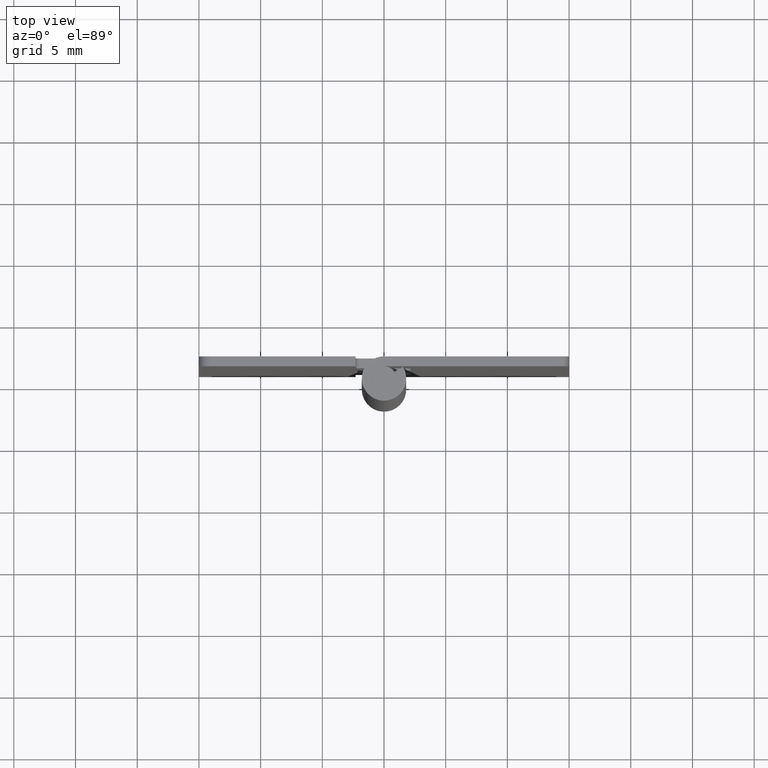
[diagram: clean part render]
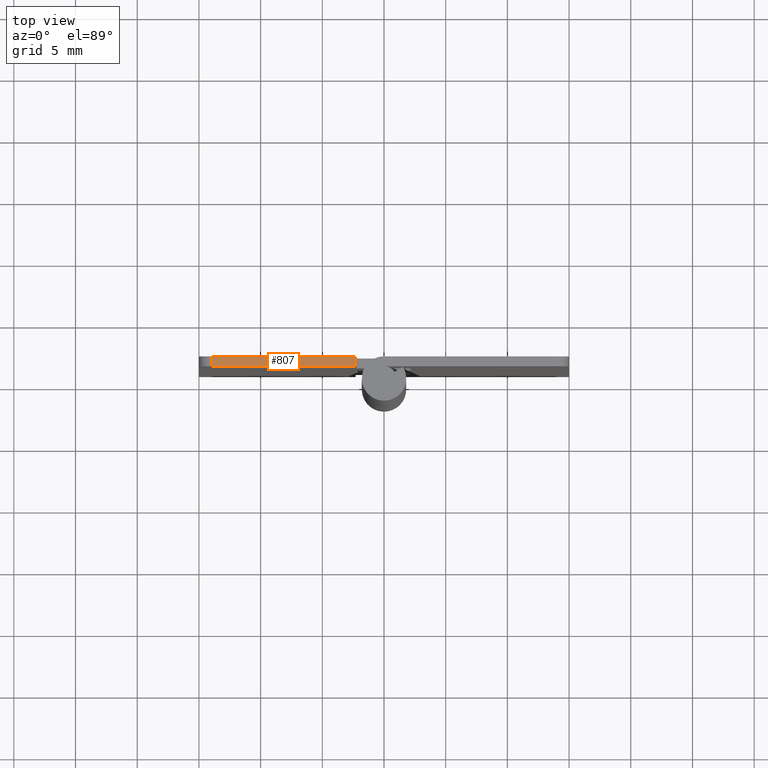
[diagram: same view with one face highlighted and labeled with its STEP entity id]
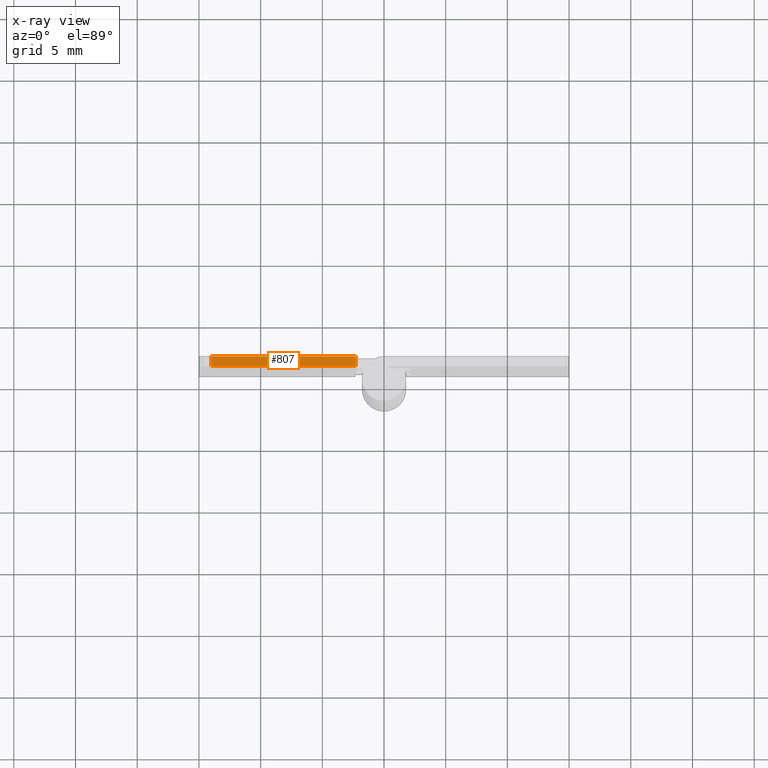
[diagram: x-ray of the same camera — body ghosted, the highlighted face saturated]
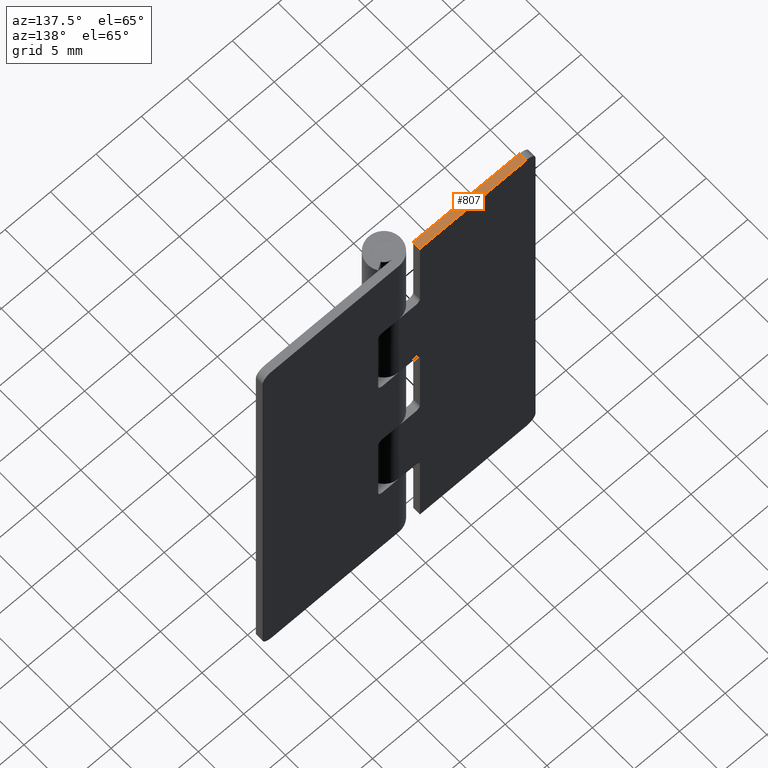
[diagram: same view with one face highlighted and labeled with its STEP entity id]
A machine part, top view. The second image highlights one B-rep face of the part: STEP entity #807.
The next image is the same camera in x-ray: the body ghosted, the highlighted face saturated — about 0% of this face is hidden behind the body in this view.
A second angle (auxiliary view) of the same face is appended — the face is thin or edge-on in the first view.
In plain terms, the highlighted face is a freeform B-spline surface patch.
Its self-contained STEP definition (entity closure, byte-faithful):
#304=CARTESIAN_POINT('',(-14.0,1.0,50.999992999999897));
#305=VERTEX_POINT('',#304);
#321=CARTESIAN_POINT('',(-14.0,1.799999000000000,50.999992999999897));
#322=VERTEX_POINT('',#321);
#323=CARTESIAN_POINT('',(-14.0,1.799999000000000,50.999992999999897));
#324=CARTESIAN_POINT('',(-14.0,1.0,50.999992999999897));
#325=QUASI_UNIFORM_CURVE('',1,(#323,#324),.UNSPECIFIED.,.F.,.U.);
#326=EDGE_CURVE('',#322,#305,#325,.T.);
#745=CARTESIAN_POINT('',(-2.300003000000000,1.0,50.999992999999897));
#746=VERTEX_POINT('',#745);
#753=CARTESIAN_POINT('',(-2.300003000000000,1.799999000000000,50.999992999999897));
#754=VERTEX_POINT('',#753);
#760=CARTESIAN_POINT('',(-2.300003000000000,1.0,50.999992999999897));
#761=CARTESIAN_POINT('',(-2.300003000000000,1.799999000000000,50.999992999999897));
#762=QUASI_UNIFORM_CURVE('',1,(#760,#761),.UNSPECIFIED.,.F.,.U.);
#763=EDGE_CURVE('',#746,#754,#762,.T.);
#788=CARTESIAN_POINT('',(-14.584414827473140,0.960040051500553,50.999992999999897));
#789=CARTESIAN_POINT('',(-1.715587858708491,0.960040051500553,50.999992999999897));
#790=CARTESIAN_POINT('',(-14.584414827473140,1.839958969957092,50.999992999999897));
#791=CARTESIAN_POINT('',(-1.715587858708491,1.839958969957092,50.999992999999897));
#792=B_SPLINE_SURFACE_WITH_KNOTS('',1,1,((#788,#790),(#789,#791)),.UNSPECIFIED.,.F.,.F.,.U.,(2,2),(2,2),(0.0,12.868826968764649),(0.041708334948495,0.958291687403247),.UNSPECIFIED.);
#793=CARTESIAN_POINT('',(-14.0,1.799999000000000,50.999992999999897));
#794=CARTESIAN_POINT('',(-2.300003000000000,1.799999000000000,50.999992999999897));
#795=QUASI_UNIFORM_CURVE('',1,(#793,#794),.UNSPECIFIED.,.F.,.U.);
#796=EDGE_CURVE('',#322,#754,#795,.T.);
#797=ORIENTED_EDGE('',*,*,#796,.F.);
#798=ORIENTED_EDGE('',*,*,#326,.T.);
#799=CARTESIAN_POINT('',(-2.300003000000000,1.0,50.999992999999897));
#800=CARTESIAN_POINT('',(-14.0,1.0,50.999992999999897));
#801=QUASI_UNIFORM_CURVE('',1,(#799,#800),.UNSPECIFIED.,.F.,.U.);
#802=EDGE_CURVE('',#746,#305,#801,.T.);
#803=ORIENTED_EDGE('',*,*,#802,.F.);
#804=ORIENTED_EDGE('',*,*,#763,.T.);
#805=EDGE_LOOP('',(#797,#798,#803,#804));
#806=FACE_OUTER_BOUND('',#805,.T.);
#807=ADVANCED_FACE('',(#806),#792,.T.);